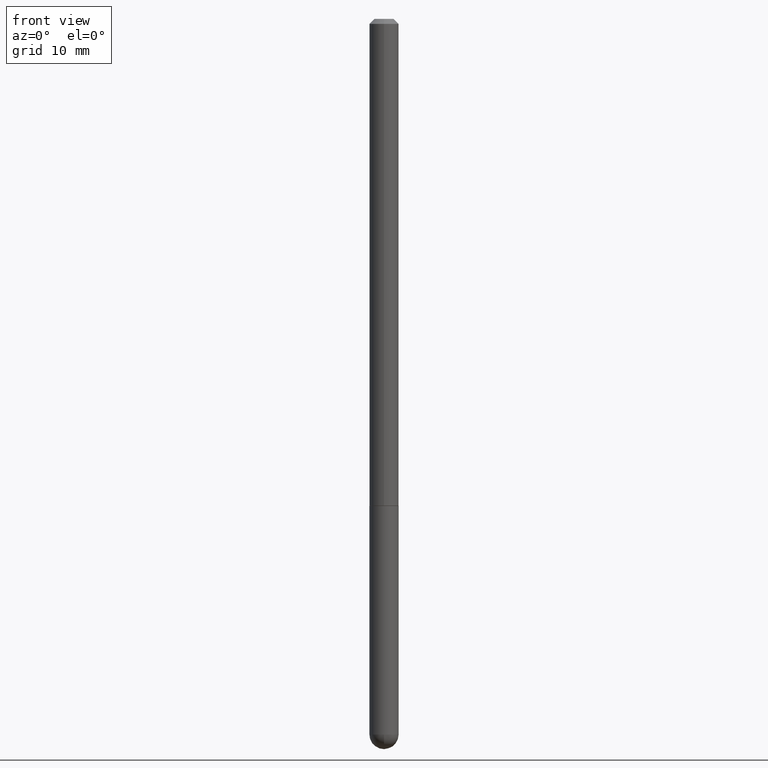
[diagram: clean part render]
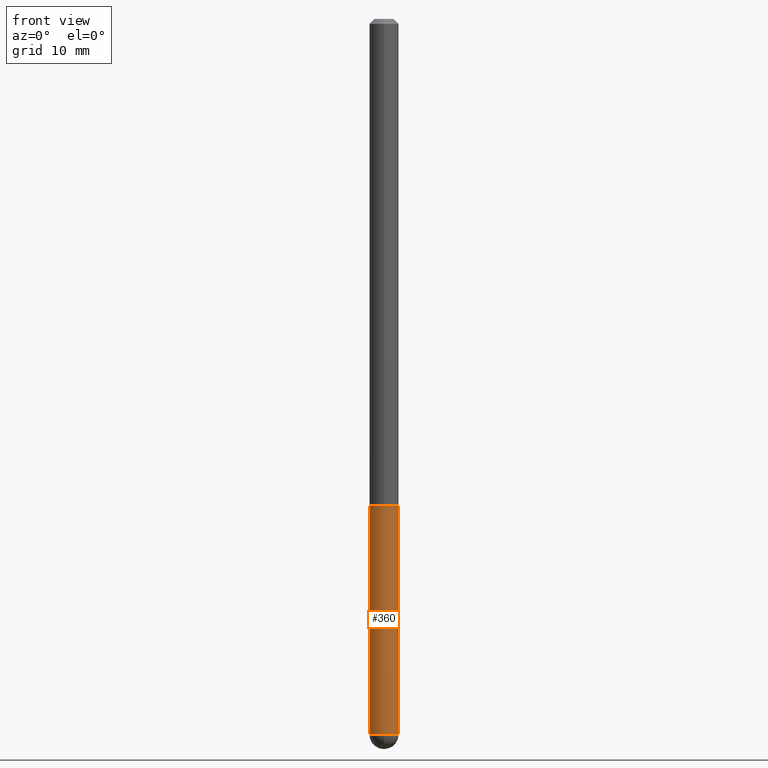
[diagram: same view with one face highlighted and labeled with its STEP entity id]
A machine part, front view. The second image highlights one B-rep face of the part: STEP entity #360.
In plain terms, the highlighted cylindrical surface (edge-blend (fillet) strip) has radius 1.4999 mm, axis along (-0, 0, 1).
Its self-contained STEP definition (entity closure, byte-faithful):
#4 = EDGE_CURVE ( 'NONE', #153, #277, #393, .T. ) ;
#13 = DIRECTION ( 'NONE',  ( 1.000000000000000000, -6.982962677686266711E-15, 4.876176775795935793E-29 ) ) ;
#20 = CIRCLE ( 'NONE', #410, 0.05905000000000001914 ) ;
#28 = DIRECTION ( 'NONE',  ( 1.000000000000000000, -6.982962677686270655E-15, 0.000000000000000000 ) ) ;
#29 = AXIS2_PLACEMENT_3D ( 'NONE', #47, #173, #174 ) ;
#43 = CARTESIAN_POINT ( 'NONE',  ( -0.05905000000000001914, -8.068652084428701697E-15, -1.968499999999999694 ) ) ;
#47 = CARTESIAN_POINT ( 'NONE',  ( 7.076575357898237682E-29, -1.010347412427735067E-14, -2.893749999999999822 ) ) ;
#48 = EDGE_CURVE ( 'NONE', #277, #331, #20, .T. ) ;
#57 = DIRECTION ( 'NONE',  ( -2.445468806185136597E-29, 3.491481338843145583E-15, 1.000000000000000000 ) ) ;
#67 = CARTESIAN_POINT ( 'NONE',  ( 0.05905000000000001914, -8.900571516012416899E-15, -2.893749999999999822 ) ) ;
#79 = DIRECTION ( 'NONE',  ( -2.445468806185136877E-29, 3.491481338843145188E-15, 1.000000000000000000 ) ) ;
#87 = EDGE_LOOP ( 'NONE', ( #163, #315, #158, #124, #215 ) ) ;
#124 = ORIENTED_EDGE ( 'NONE', *, *, #372, .T. ) ;
#147 = AXIS2_PLACEMENT_3D ( 'NONE', #303, #152, #13 ) ;
#152 = DIRECTION ( 'NONE',  ( -2.445468806185136597E-29, 3.491481338843145583E-15, 1.000000000000000000 ) ) ;
#153 = VERTEX_POINT ( 'NONE', #335 ) ;
#158 = ORIENTED_EDGE ( 'NONE', *, *, #304, .T. ) ;
#160 = DIRECTION ( 'NONE',  ( 1.000000000000000000, -6.982962677686270655E-15, 0.000000000000000000 ) ) ;
#163 = ORIENTED_EDGE ( 'NONE', *, *, #4, .F. ) ;
#173 = DIRECTION ( 'NONE',  ( -2.445468806185136597E-29, 3.491481338843145583E-15, 1.000000000000000000 ) ) ;
#174 = DIRECTION ( 'NONE',  ( 1.000000000000000000, -6.982962677686270655E-15, 0.000000000000000000 ) ) ;
#197 = CIRCLE ( 'NONE', #247, 0.05905000000000001914 ) ;
#215 = ORIENTED_EDGE ( 'NONE', *, *, #48, .F. ) ;
#221 = EDGE_CURVE ( 'NONE', #153, #359, #197, .T. ) ;
#236 = CYLINDRICAL_SURFACE ( 'NONE', #147, 0.05905000000000001914 ) ;
#240 = FACE_OUTER_BOUND ( 'NONE', #87, .T. ) ;
#247 = AXIS2_PLACEMENT_3D ( 'NONE', #343, #57, #160 ) ;
#257 = CARTESIAN_POINT ( 'NONE',  ( 0.05905000000000001914, -7.285324961630105839E-15, -1.968499999999999694 ) ) ;
#269 = VERTEX_POINT ( 'NONE', #67 ) ;
#270 = CIRCLE ( 'NONE', #29, 0.05905000000000001914 ) ;
#272 = CARTESIAN_POINT ( 'NONE',  ( 0.05905000000000001914, -4.123439461173741806E-16, 2.879382386107500921E-30 ) ) ;
#277 = VERTEX_POINT ( 'NONE', #43 ) ;
#284 = DIRECTION ( 'NONE',  ( -2.445468806185136877E-29, 3.491481338843145188E-15, 1.000000000000000000 ) ) ;
#303 = CARTESIAN_POINT ( 'NONE',  ( 0.000000000000000000, 0.000000000000000000, 0.000000000000000000 ) ) ;
#304 = EDGE_CURVE ( 'NONE', #359, #269, #270, .T. ) ;
#312 = CARTESIAN_POINT ( 'NONE',  ( -0.05905000000000001914, 4.195754854663392958E-16, -2.904631170795522943E-30 ) ) ;
#315 = ORIENTED_EDGE ( 'NONE', *, *, #221, .T. ) ;
#317 = DIRECTION ( 'NONE',  ( -2.445468806185136597E-29, 3.491481338843145583E-15, 1.000000000000000000 ) ) ;
#331 = VERTEX_POINT ( 'NONE', #257 ) ;
#335 = CARTESIAN_POINT ( 'NONE',  ( -0.05905000000000001914, -8.068652084428701697E-15, -2.893749999999999822 ) ) ;
#339 = CARTESIAN_POINT ( 'NONE',  ( 4.813905344975440714E-29, -6.872981015512730918E-15, -1.968499999999999694 ) ) ;
#343 = CARTESIAN_POINT ( 'NONE',  ( 7.076575357898237682E-29, -1.010347412427735067E-14, -2.893749999999999822 ) ) ;
#359 = VERTEX_POINT ( 'NONE', #390 ) ;
#360 = ADVANCED_FACE ( 'NONE', ( #240 ), #236, .T. ) ;
#361 = LINE ( 'NONE', #272, #370 ) ;
#370 = VECTOR ( 'NONE', #79, 39.37007874015748143 ) ;
#372 = EDGE_CURVE ( 'NONE', #269, #331, #361, .T. ) ;
#390 = CARTESIAN_POINT ( 'NONE',  ( -4.195754854662709114E-16, -0.05905000000001047605, -2.893749999999999822 ) ) ;
#393 = LINE ( 'NONE', #312, #402 ) ;
#402 = VECTOR ( 'NONE', #284, 39.37007874015748143 ) ;
#410 = AXIS2_PLACEMENT_3D ( 'NONE', #339, #317, #28 ) ;